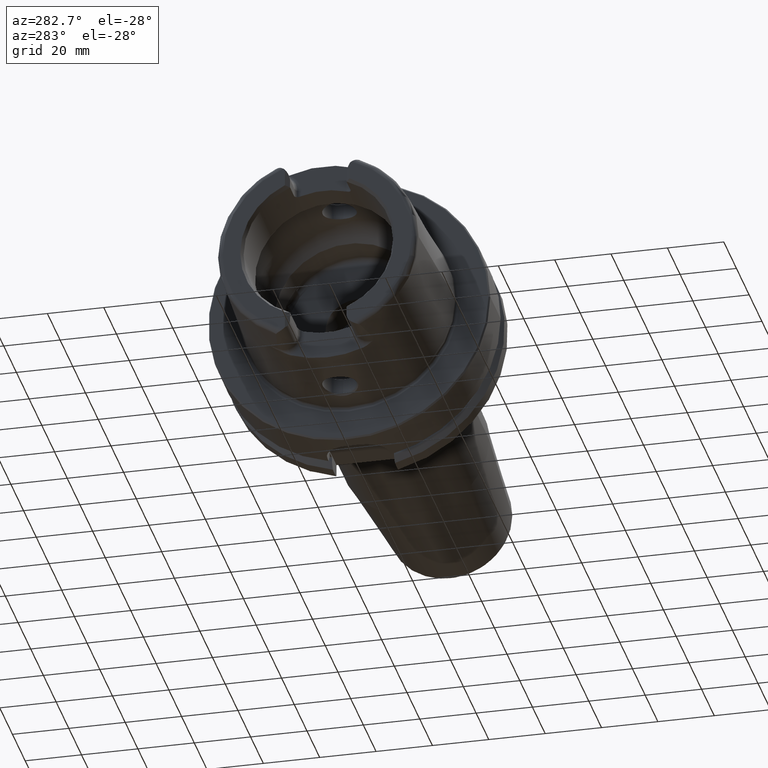
[diagram: clean part render]
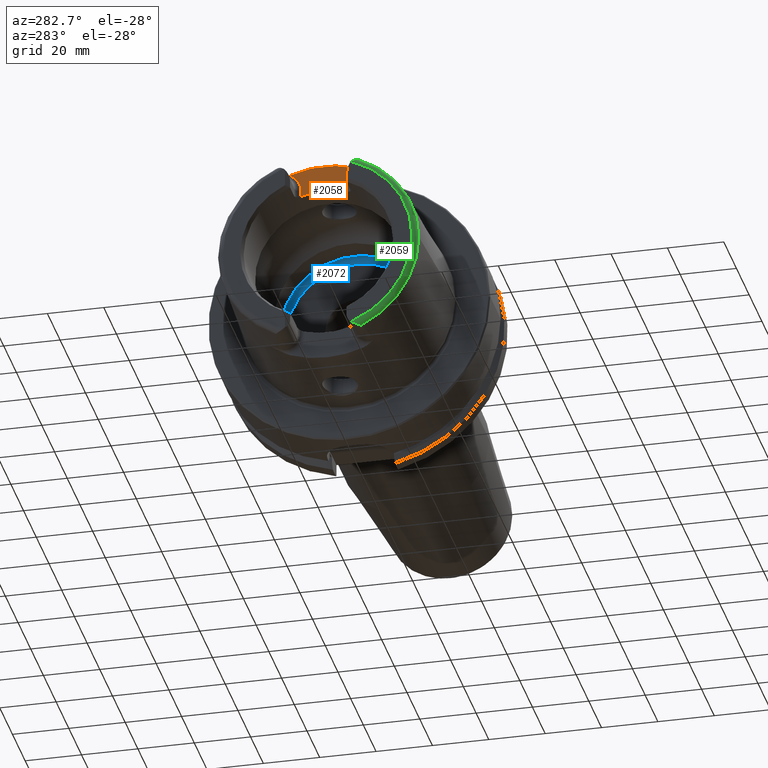
[diagram: same view with three faces highlighted in distinct colors, each labeled with its STEP entity id]
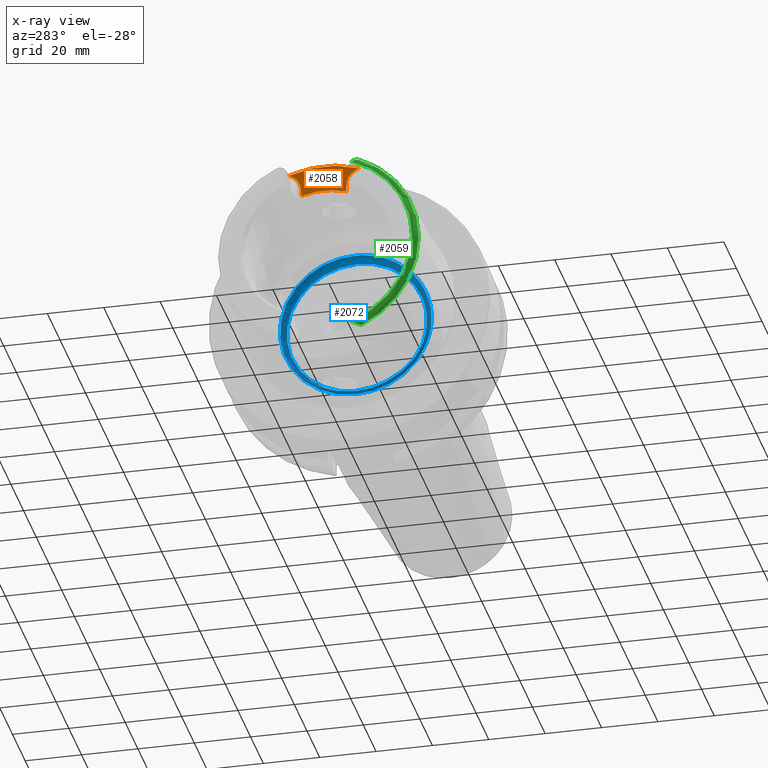
[diagram: x-ray of the same camera — body ghosted, the three highlighted faces saturated]
A machine part, auxiliary view with three faces highlighted in distinct colors.
The next image is the same camera in x-ray (body ghosted, the three faces saturated) — at least one of them is partly hidden behind the body in this view.
Their STEP definitions:

[orange] entity #2058 — the highlighted planar face has unit normal (-1, 0, 0).
#127=PLANE('',#2304);
#296=FACE_OUTER_BOUND('',#424,.T.);
#424=EDGE_LOOP('',(#1802,#1803,#1804,#1805,#1806,#1807));
#547=LINE('',#4316,#654);
#548=LINE('',#4345,#655);
#654=VECTOR('',#2787,10.);
#655=VECTOR('',#2800,10.);
#712=CIRCLE('',#2191,36.003493987976);
#755=CIRCLE('',#2277,6.88);
#757=CIRCLE('',#2280,6.88);
#769=CIRCLE('',#2305,26.5);
#884=VERTEX_POINT('',#3494);
#885=VERTEX_POINT('',#3511);
#976=VERTEX_POINT('',#4313);
#977=VERTEX_POINT('',#4315);
#978=VERTEX_POINT('',#4330);
#979=VERTEX_POINT('',#4334);
#1113=EDGE_CURVE('',#884,#885,#712,.T.);
#1251=EDGE_CURVE('',#976,#977,#547,.T.);
#1253=EDGE_CURVE('',#885,#976,#755,.T.);
#1255=EDGE_CURVE('',#978,#884,#757,.T.);
#1257=EDGE_CURVE('',#979,#978,#548,.T.);
#1278=EDGE_CURVE('',#977,#979,#769,.T.);
#1802=ORIENTED_EDGE('',*,*,#1253,.F.);
#1803=ORIENTED_EDGE('',*,*,#1113,.F.);
#1804=ORIENTED_EDGE('',*,*,#1255,.F.);
#1805=ORIENTED_EDGE('',*,*,#1257,.F.);
#1806=ORIENTED_EDGE('',*,*,#1278,.F.);
#1807=ORIENTED_EDGE('',*,*,#1251,.F.);
#2058=ADVANCED_FACE('',(#296),#127,.T.);
#2191=AXIS2_PLACEMENT_3D('',#3512,#2568,#2569);
#2277=AXIS2_PLACEMENT_3D('',#4328,#2790,#2791);
#2280=AXIS2_PLACEMENT_3D('',#4332,#2796,#2797);
#2304=AXIS2_PLACEMENT_3D('',#4403,#2852,#2853);
#2305=AXIS2_PLACEMENT_3D('',#4404,#2854,#2855);
#2568=DIRECTION('center_axis',(1.,0.,0.));
#2569=DIRECTION('ref_axis',(0.,1.,0.));
#2787=DIRECTION('',(0.,0.,-1.));
#2790=DIRECTION('center_axis',(-1.,0.,0.));
#2791=DIRECTION('ref_axis',(0.,0.564947834751706,0.82512662301574));
#2796=DIRECTION('center_axis',(-1.,0.,0.));
#2797=DIRECTION('ref_axis',(0.,-0.564947834751705,0.825126623015741));
#2800=DIRECTION('',(0.,0.,1.));
#2852=DIRECTION('center_axis',(-1.,0.,0.));
#2853=DIRECTION('ref_axis',(0.,0.,1.));
#2854=DIRECTION('center_axis',(-1.,0.,0.));
#2855=DIRECTION('ref_axis',(0.,1.,0.));
#3494=CARTESIAN_POINT('',(-40.,12.4227760464511,33.7923987701664));
#3511=CARTESIAN_POINT('',(-40.,-12.4227760464511,33.7923987701664));
#3512=CARTESIAN_POINT('Origin',(-40.,0.,0.));
#4313=CARTESIAN_POINT('',(-40.,-8.01,27.37));
#4315=CARTESIAN_POINT('',(-40.,-8.01,25.2604414054862));
#4316=CARTESIAN_POINT('',(-40.,-8.01,23.5));
#4328=CARTESIAN_POINT('Origin',(-40.,-14.89,27.37));
#4330=CARTESIAN_POINT('',(-40.,8.01,27.37));
#4332=CARTESIAN_POINT('Origin',(-40.,14.89,27.37));
#4334=CARTESIAN_POINT('',(-40.,8.01,25.2604414054862));
#4345=CARTESIAN_POINT('',(-40.,8.01,28.185));
#4403=CARTESIAN_POINT('Origin',(-40.,0.,29.));
#4404=CARTESIAN_POINT('Origin',(-40.,0.,0.));

[blue] entity #2072 — the highlighted toroidal blend (fillet) surface has major radius 24.9 mm and minor (blend) radius 2 mm.
#156=TOROIDAL_SURFACE('',#2332,24.9,2.);
#310=FACE_OUTER_BOUND('',#441,.T.);
#441=EDGE_LOOP('',(#1875,#1876,#1877,#1878,#1879));
#782=CIRCLE('',#2331,24.9);
#783=CIRCLE('',#2333,2.);
#784=CIRCLE('',#2334,26.5);
#785=CIRCLE('',#2335,26.5);
#996=VERTEX_POINT('',#4454);
#997=VERTEX_POINT('',#4457);
#998=VERTEX_POINT('',#4459);
#1296=EDGE_CURVE('',#996,#996,#782,.T.);
#1297=EDGE_CURVE('',#996,#997,#783,.T.);
#1298=EDGE_CURVE('',#997,#998,#784,.T.);
#1299=EDGE_CURVE('',#998,#997,#785,.T.);
#1875=ORIENTED_EDGE('',*,*,#1296,.F.);
#1876=ORIENTED_EDGE('',*,*,#1297,.T.);
#1877=ORIENTED_EDGE('',*,*,#1298,.T.);
#1878=ORIENTED_EDGE('',*,*,#1299,.T.);
#1879=ORIENTED_EDGE('',*,*,#1297,.F.);
#2072=ADVANCED_FACE('',(#310),#156,.F.);
#2331=AXIS2_PLACEMENT_3D('',#4455,#2910,#2911);
#2332=AXIS2_PLACEMENT_3D('',#4456,#2912,#2913);
#2333=AXIS2_PLACEMENT_3D('',#4458,#2914,#2915);
#2334=AXIS2_PLACEMENT_3D('',#4460,#2916,#2917);
#2335=AXIS2_PLACEMENT_3D('',#4461,#2918,#2919);
#2910=DIRECTION('center_axis',(-1.,0.,0.));
#2911=DIRECTION('ref_axis',(0.,0.,1.));
#2912=DIRECTION('center_axis',(-1.,0.,0.));
#2913=DIRECTION('ref_axis',(0.,0.,1.));
#2914=DIRECTION('center_axis',(0.,1.,-1.22464679914735E-16));
#2915=DIRECTION('ref_axis',(0.,-1.22464679914735E-16,-1.));
#2916=DIRECTION('center_axis',(-1.,0.,0.));
#2917=DIRECTION('ref_axis',(0.,0.,1.));
#2918=DIRECTION('center_axis',(-1.,0.,0.));
#2919=DIRECTION('ref_axis',(0.,0.,1.));
#4454=CARTESIAN_POINT('',(12.5,-3.04937052987691E-15,-24.9));
#4455=CARTESIAN_POINT('Origin',(12.5,0.,0.));
#4456=CARTESIAN_POINT('Origin',(10.5,0.,0.));
#4457=CARTESIAN_POINT('',(9.3,-3.24531401774049E-15,-26.5));
#4458=CARTESIAN_POINT('Origin',(10.5,-3.04937052987691E-15,-24.9));
#4459=CARTESIAN_POINT('',(9.3,-26.5,3.24531401774049E-15));
#4460=CARTESIAN_POINT('Origin',(9.3,0.,0.));
#4461=CARTESIAN_POINT('Origin',(9.3,0.,0.));

[green] entity #2059 — the highlighted toroidal blend (fillet) surface has major radius 33.6002 mm and minor (blend) radius 2 mm.
#33=B_SPLINE_CURVE_WITH_KNOTS('',3,(#3179,#3180,#3181,#3182,#3183,#3184,
#3185,#3186,#3187,#3188,#3189,#3190),.UNSPECIFIED.,.F.,.F.,(4,2,2,2,2,4),
(-0.744571126726518,-0.701342830888641,-0.656522678464628,-0.531122919946975,
-0.406784567241786,-0.320835419118986),.UNSPECIFIED.);
#84=B_SPLINE_CURVE_WITH_KNOTS('',3,(#4406,#4407,#4408,#4409,#4410,#4411,
#4412,#4413,#4414,#4415,#4416,#4417),.UNSPECIFIED.,.F.,.F.,(4,2,2,2,2,4),
(-0.330531435638092,-0.267908000768824,-0.159978118105095,-0.0786368985358016,
-0.0319888850382436,0.),.UNSPECIFIED.);
#153=TOROIDAL_SURFACE('',#2306,33.6001839277785,2.);
#297=FACE_OUTER_BOUND('',#425,.T.);
#425=EDGE_LOOP('',(#1808,#1809,#1810,#1811,#1812));
#703=CIRCLE('',#2172,33.6001839277785);
#709=CIRCLE('',#2188,35.5976786130245);
#713=CIRCLE('',#2192,35.5976786130245);
#854=VERTEX_POINT('',#3160);
#855=VERTEX_POINT('',#3162);
#860=VERTEX_POINT('',#3178);
#875=VERTEX_POINT('',#3397);
#876=VERTEX_POINT('',#3399);
#1074=EDGE_CURVE('',#855,#854,#703,.T.);
#1082=EDGE_CURVE('',#860,#855,#33,.T.);
#1102=EDGE_CURVE('',#875,#876,#709,.T.);
#1115=EDGE_CURVE('',#860,#875,#713,.T.);
#1279=EDGE_CURVE('',#854,#876,#84,.T.);
#1808=ORIENTED_EDGE('',*,*,#1082,.T.);
#1809=ORIENTED_EDGE('',*,*,#1074,.T.);
#1810=ORIENTED_EDGE('',*,*,#1279,.T.);
#1811=ORIENTED_EDGE('',*,*,#1102,.F.);
#1812=ORIENTED_EDGE('',*,*,#1115,.F.);
#2059=ADVANCED_FACE('',(#297),#153,.T.);
#2172=AXIS2_PLACEMENT_3D('',#3163,#2518,#2519);
#2188=AXIS2_PLACEMENT_3D('',#3400,#2562,#2563);
#2192=AXIS2_PLACEMENT_3D('',#3527,#2570,#2571);
#2306=AXIS2_PLACEMENT_3D('',#4405,#2856,#2857);
#2518=DIRECTION('center_axis',(1.,0.,0.));
#2519=DIRECTION('ref_axis',(0.,0.,-1.));
#2562=DIRECTION('center_axis',(1.,0.,0.));
#2563=DIRECTION('ref_axis',(0.,0.,-1.));
#2570=DIRECTION('center_axis',(1.,0.,0.));
#2571=DIRECTION('ref_axis',(0.,0.,-1.));
#2856=DIRECTION('center_axis',(1.,0.,0.));
#2857=DIRECTION('ref_axis',(0.,0.,-1.));
#3160=CARTESIAN_POINT('',(-50.,-12.0743049948301,-31.355757348091));
#3162=CARTESIAN_POINT('',(-50.,-12.0743049948301,31.355757348091));
#3163=CARTESIAN_POINT('Origin',(-50.,0.,0.));
#3178=CARTESIAN_POINT('',(-48.1000748840304,-15.0787152148571,32.2463497175327));
#3179=CARTESIAN_POINT('Ctrl Pts',(-48.1000748840304,-15.0787152148571,32.2463497175327));
#3180=CARTESIAN_POINT('Ctrl Pts',(-48.2106037175751,-15.0644627457708,32.2469012894916));
#3181=CARTESIAN_POINT('Ctrl Pts',(-48.3154292138326,-15.0273539899824,32.2483385926998));
#3182=CARTESIAN_POINT('Ctrl Pts',(-48.5163157198425,-14.9224481921473,32.2501843906849));
#3183=CARTESIAN_POINT('Ctrl Pts',(-48.6121978837474,-14.8534224082598,32.2504380645671));
#3184=CARTESIAN_POINT('Ctrl Pts',(-48.945264184207,-14.5689466462258,32.2439376039327));
#3185=CARTESIAN_POINT('Ctrl Pts',(-49.1880723127852,-14.2607780319834,32.2227822574558));
#3186=CARTESIAN_POINT('Ctrl Pts',(-49.6101150709732,-13.5547183211213,32.0774653757186));
#3187=CARTESIAN_POINT('Ctrl Pts',(-49.7793847368059,-13.1765954395989,31.957165019384));
#3188=CARTESIAN_POINT('Ctrl Pts',(-49.9574602860506,-12.5580264083439,31.6658578550016));
#3189=CARTESIAN_POINT('Ctrl Pts',(-50.,-12.3091419271059,31.5216553492714));
#3190=CARTESIAN_POINT('Ctrl Pts',(-50.,-12.0743049948301,31.355757348091));
#3397=CARTESIAN_POINT('',(-48.1000748840304,-35.5976786130245,-4.35945831705167E-15));
#3399=CARTESIAN_POINT('',(-48.1000748840304,-15.0787152148571,-32.2463497175327));
#3400=CARTESIAN_POINT('Origin',(-48.1000748840304,0.,0.));
#3527=CARTESIAN_POINT('Origin',(-48.1000748840304,0.,0.));
#4405=CARTESIAN_POINT('Origin',(-48.,0.,0.));
#4406=CARTESIAN_POINT('Ctrl Pts',(-50.,-12.0743049948301,-31.355757348091));
#4407=CARTESIAN_POINT('Ctrl Pts',(-50.,-12.2858381230511,-31.5051926299064));
#4408=CARTESIAN_POINT('Ctrl Pts',(-49.9653696826563,-12.5170331398669,-31.6430588255455));
#4409=CARTESIAN_POINT('Ctrl Pts',(-49.7810065498998,-13.1911222585011,-31.9692156023964));
#4410=CARTESIAN_POINT('Ctrl Pts',(-49.5806767805337,-13.6194685503754,-32.0969374367804));
#4411=CARTESIAN_POINT('Ctrl Pts',(-49.1716377200869,-14.2730899346346,-32.2192774131036));
#4412=CARTESIAN_POINT('Ctrl Pts',(-48.9774936618895,-14.5201969661755,-32.2395201073332));
#4413=CARTESIAN_POINT('Ctrl Pts',(-48.6675943633755,-14.8125911006811,-32.2505512851489));
#4414=CARTESIAN_POINT('Ctrl Pts',(-48.5398374959924,-14.912197389574,-32.2504544601106));
#4415=CARTESIAN_POINT('Ctrl Pts',(-48.3063803700173,-15.0305209025154,-32.2482139663407));
#4416=CARTESIAN_POINT('Ctrl Pts',(-48.2058276135777,-15.0650786147019,-32.2468774553032));
#4417=CARTESIAN_POINT('Ctrl Pts',(-48.1000748840304,-15.0787152148571,-32.2463497175327));